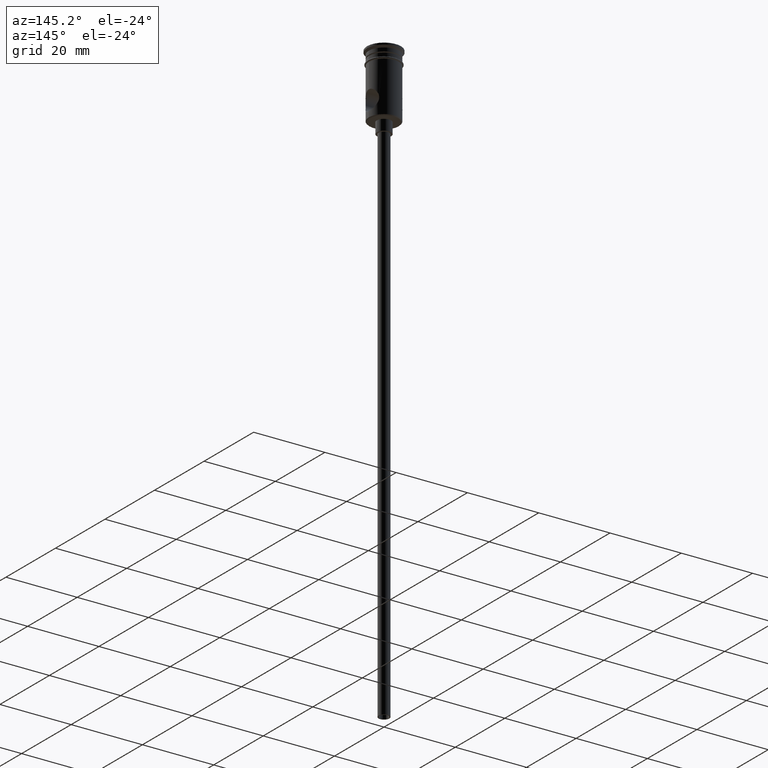
[diagram: clean part render]
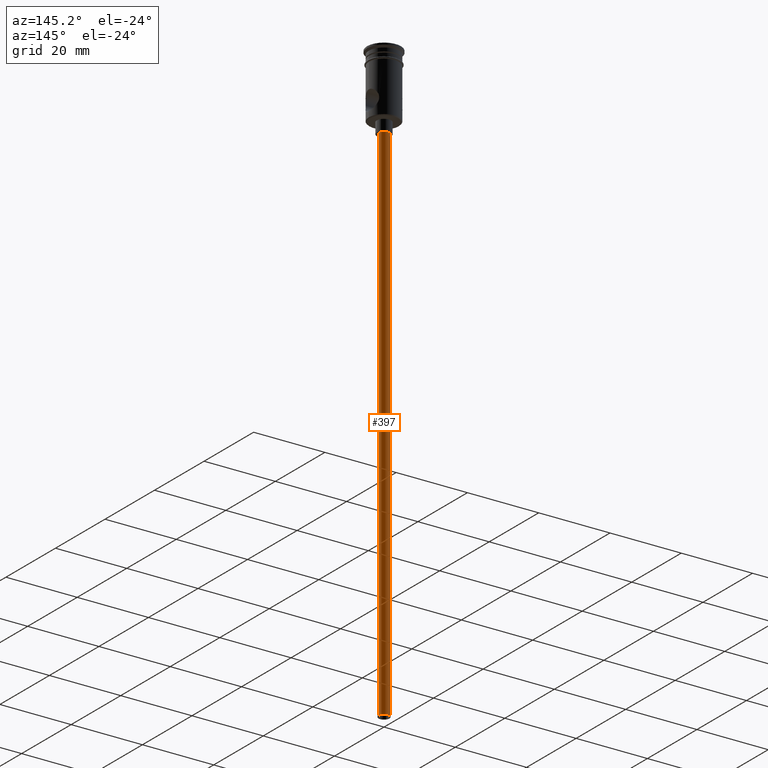
[diagram: same view with one face highlighted and labeled with its STEP entity id]
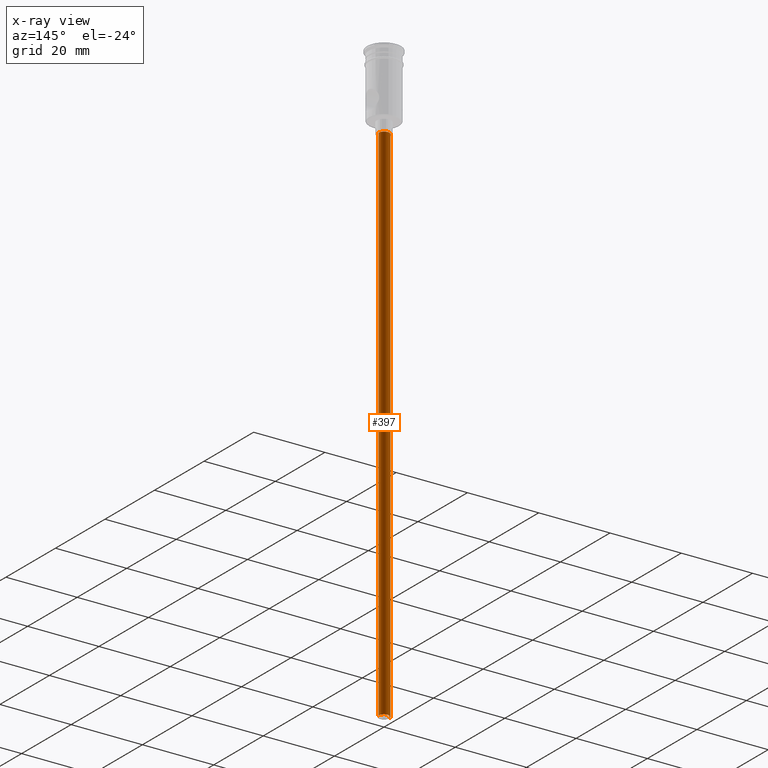
[diagram: x-ray of the same camera — body ghosted, the highlighted face saturated]
A machine part, auxiliary view. The second image highlights one B-rep face of the part: STEP entity #397.
The next image is the same camera in x-ray: the body ghosted, the highlighted face saturated — about 0% of this face is hidden behind the body in this view.
In plain terms, the highlighted cylindrical surface (edge-blend (fillet) strip) has radius 1.5 mm, axis along (-0, -0, 1).
Its self-contained STEP definition (entity closure, byte-faithful):
#29 = ORIENTED_EDGE ( 'NONE', *, *, #1043, .F. ) ;
#80 = CARTESIAN_POINT ( 'NONE',  ( -1.500000000000000222, 1.836970198721030181E-16, -167.9999999999999716 ) ) ;
#192 = VERTEX_POINT ( 'NONE', #677 ) ;
#235 = ORIENTED_EDGE ( 'NONE', *, *, #478, .F. ) ;
#271 = VECTOR ( 'NONE', #1068, 1000.000000000000000 ) ;
#310 = VERTEX_POINT ( 'NONE', #1278 ) ;
#382 = DIRECTION ( 'NONE',  ( 0.000000000000000000, 0.000000000000000000, -1.000000000000000000 ) ) ;
#397 = ADVANCED_FACE ( 'NONE', ( #750 ), #1178, .T. ) ;
#416 = AXIS2_PLACEMENT_3D ( 'NONE', #1040, #382, #1353 ) ;
#418 = LINE ( 'NONE', #1097, #271 ) ;
#437 = EDGE_CURVE ( 'NONE', #192, #310, #1172, .T. ) ;
#478 = EDGE_CURVE ( 'NONE', #787, #1430, #418, .T. ) ;
#535 = EDGE_CURVE ( 'NONE', #310, #1430, #945, .T. ) ;
#542 = DIRECTION ( 'NONE',  ( 0.000000000000000000, 0.000000000000000000, -1.000000000000000000 ) ) ;
#558 = DIRECTION ( 'NONE',  ( -0.000000000000000000, -0.000000000000000000, 1.000000000000000000 ) ) ;
#599 = CARTESIAN_POINT ( 'NONE',  ( 1.500000000000000222, 0.000000000000000000, -20.99999999999999645 ) ) ;
#677 = CARTESIAN_POINT ( 'NONE',  ( -1.500000000000000222, 1.836970198721030181E-16, -167.9999999999999716 ) ) ;
#750 = FACE_OUTER_BOUND ( 'NONE', #1397, .T. ) ;
#757 = CARTESIAN_POINT ( 'NONE',  ( 0.000000000000000000, 0.000000000000000000, -20.99999999999999645 ) ) ;
#763 = DIRECTION ( 'NONE',  ( -1.000000000000000000, 0.000000000000000000, 0.000000000000000000 ) ) ;
#787 = VERTEX_POINT ( 'NONE', #1398 ) ;
#945 = CIRCLE ( 'NONE', #1101, 1.500000000000000222 ) ;
#981 = CARTESIAN_POINT ( 'NONE',  ( 0.000000000000000000, 0.000000000000000000, -167.9999999999999716 ) ) ;
#1040 = CARTESIAN_POINT ( 'NONE',  ( 0.000000000000000000, 0.000000000000000000, -167.9999999999999716 ) ) ;
#1043 = EDGE_CURVE ( 'NONE', #192, #787, #1077, .T. ) ;
#1068 = DIRECTION ( 'NONE',  ( -0.000000000000000000, -0.000000000000000000, 1.000000000000000000 ) ) ;
#1077 = CIRCLE ( 'NONE', #416, 1.500000000000000222 ) ;
#1084 = DIRECTION ( 'NONE',  ( -0.000000000000000000, -0.000000000000000000, 1.000000000000000000 ) ) ;
#1097 = CARTESIAN_POINT ( 'NONE',  ( 1.500000000000000222, 0.000000000000000000, -167.9999999999999716 ) ) ;
#1101 = AXIS2_PLACEMENT_3D ( 'NONE', #757, #542, #763 ) ;
#1104 = ORIENTED_EDGE ( 'NONE', *, *, #437, .T. ) ;
#1172 = LINE ( 'NONE', #80, #1279 ) ;
#1178 = CYLINDRICAL_SURFACE ( 'NONE', #1328, 1.500000000000000222 ) ;
#1278 = CARTESIAN_POINT ( 'NONE',  ( -1.500000000000000222, 1.836970198721030181E-16, -20.99999999999999645 ) ) ;
#1279 = VECTOR ( 'NONE', #558, 1000.000000000000000 ) ;
#1328 = AXIS2_PLACEMENT_3D ( 'NONE', #981, #1084, #1408 ) ;
#1353 = DIRECTION ( 'NONE',  ( -1.000000000000000000, 0.000000000000000000, 0.000000000000000000 ) ) ;
#1393 = ORIENTED_EDGE ( 'NONE', *, *, #535, .T. ) ;
#1397 = EDGE_LOOP ( 'NONE', ( #29, #1104, #1393, #235 ) ) ;
#1398 = CARTESIAN_POINT ( 'NONE',  ( 1.500000000000000222, 0.000000000000000000, -167.9999999999999716 ) ) ;
#1408 = DIRECTION ( 'NONE',  ( 1.000000000000000000, 0.000000000000000000, 0.000000000000000000 ) ) ;
#1430 = VERTEX_POINT ( 'NONE', #599 ) ;